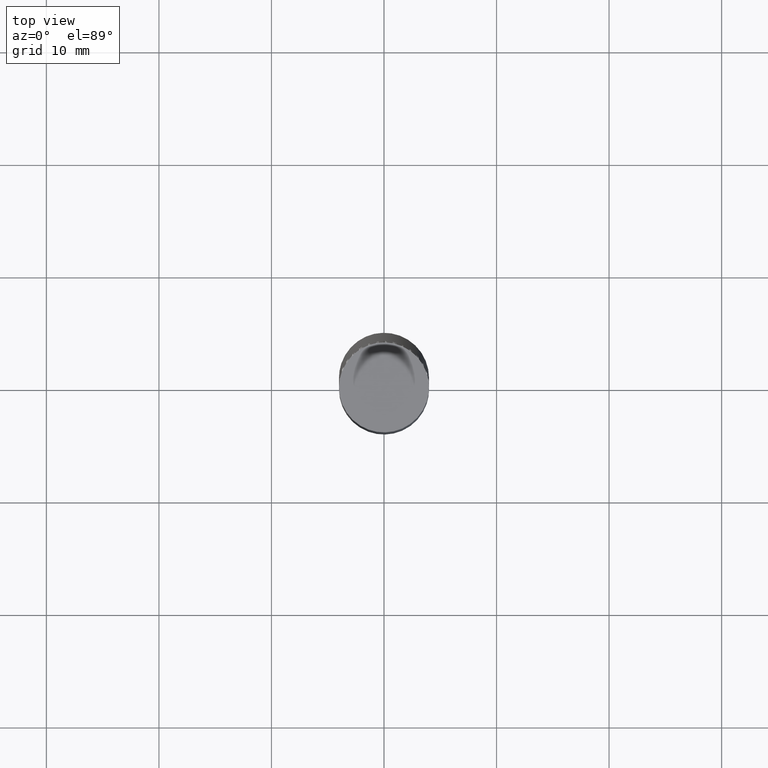
[diagram: clean part render]
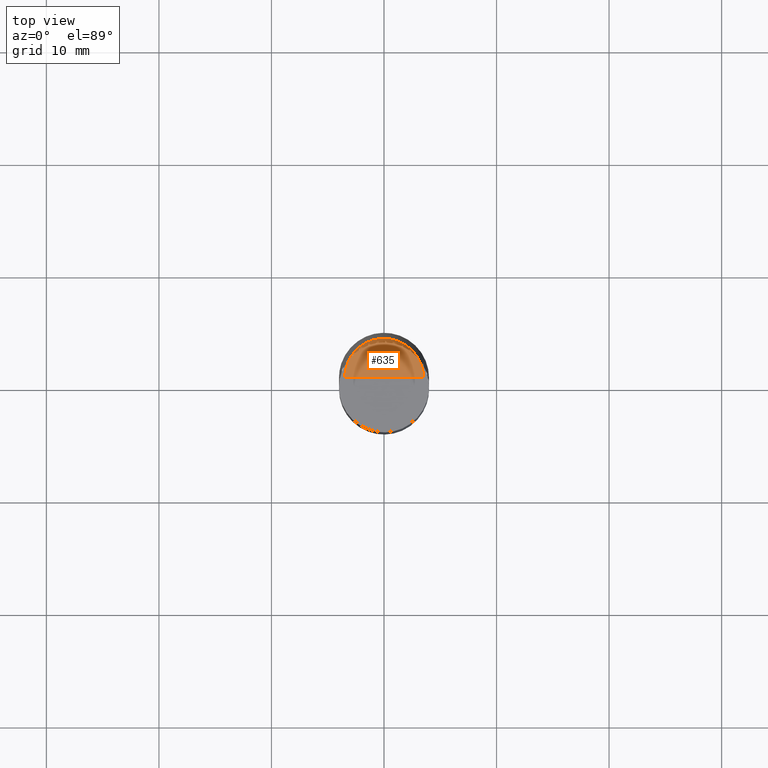
[diagram: same view with one face highlighted and labeled with its STEP entity id]
A machine part, top view. The second image highlights one B-rep face of the part: STEP entity #635.
In plain terms, the highlighted face is a freeform B-spline surface patch.
Its self-contained STEP definition (entity closure, byte-faithful):
#416=CARTESIAN_POINT('',(3.5,0.0,44.0));
#417=CARTESIAN_POINT('',(3.5,3.5,44.0));
#418=CARTESIAN_POINT('',(0.0,3.5,44.0));
#419=CARTESIAN_POINT('',(-3.5,3.5,44.0));
#420=CARTESIAN_POINT('',(-3.5,0.0,44.0));
#421=CARTESIAN_POINT('',(0.0,0.0,44.0));
#620=(
BOUNDED_SURFACE()
B_SPLINE_SURFACE(1,2,(
(#416,#417,#418,#419,#420),
(#421,#421,#421,#421,#421)
), .UNSPECIFIED.,.F.,.F.,.F.)
B_SPLINE_SURFACE_WITH_KNOTS((2,2),(3,2,3),(
0.0,1.0),(
0.0,0.5,1.0), .UNSPECIFIED.)
GEOMETRIC_REPRESENTATION_ITEM()
RATIONAL_B_SPLINE_SURFACE(((1.0,0.707106781187,1.0,0.707106781187,1.0),
(1.0,0.707106781187,1.0,0.707106781187,1.0)
))
REPRESENTATION_ITEM('')
SURFACE()
);
#621=(
BOUNDED_CURVE()
B_SPLINE_CURVE(2,(#420,#419,#418,#417,#416),.UNSPECIFIED.,.F.,.F.)
B_SPLINE_CURVE_WITH_KNOTS((3,2,3),
(0.0,0.5,1.0),.UNSPECIFIED.)
CURVE()
GEOMETRIC_REPRESENTATION_ITEM()
RATIONAL_B_SPLINE_CURVE((1.0,0.707106781187,1.0,0.707106781187,1.0))
REPRESENTATION_ITEM('')
);
#622=(
BOUNDED_CURVE()
B_SPLINE_CURVE(1,(#416,#421),.UNSPECIFIED.,.F.,.F.)
B_SPLINE_CURVE_WITH_KNOTS((2,2),
(0.0,1.0),.UNSPECIFIED.)
CURVE()
GEOMETRIC_REPRESENTATION_ITEM()
RATIONAL_B_SPLINE_CURVE((1.0,1.0))
REPRESENTATION_ITEM('')
);
#623=(
BOUNDED_CURVE()
B_SPLINE_CURVE(1,(#421,#420),.UNSPECIFIED.,.F.,.F.)
B_SPLINE_CURVE_WITH_KNOTS((2,2),
(0.0,1.0),.UNSPECIFIED.)
CURVE()
GEOMETRIC_REPRESENTATION_ITEM()
RATIONAL_B_SPLINE_CURVE((1.0,1.0))
REPRESENTATION_ITEM('')
);
#624=VERTEX_POINT('',#416);
#625=VERTEX_POINT('',#420);
#626=VERTEX_POINT('',#421);
#627=EDGE_CURVE('',#625,#624,#621,.T.);
#628=EDGE_CURVE('',#624,#626,#622,.T.);
#629=EDGE_CURVE('',#626,#625,#623,.T.);
#630=ORIENTED_EDGE('',*,*,#627,.T.);
#631=ORIENTED_EDGE('',*,*,#628,.T.);
#632=ORIENTED_EDGE('',*,*,#629,.T.);
#633=EDGE_LOOP('',(#630,#631,#632));
#634=FACE_OUTER_BOUND('',#633,.T.);
#635=ADVANCED_FACE('',(#634),#620,.T.);